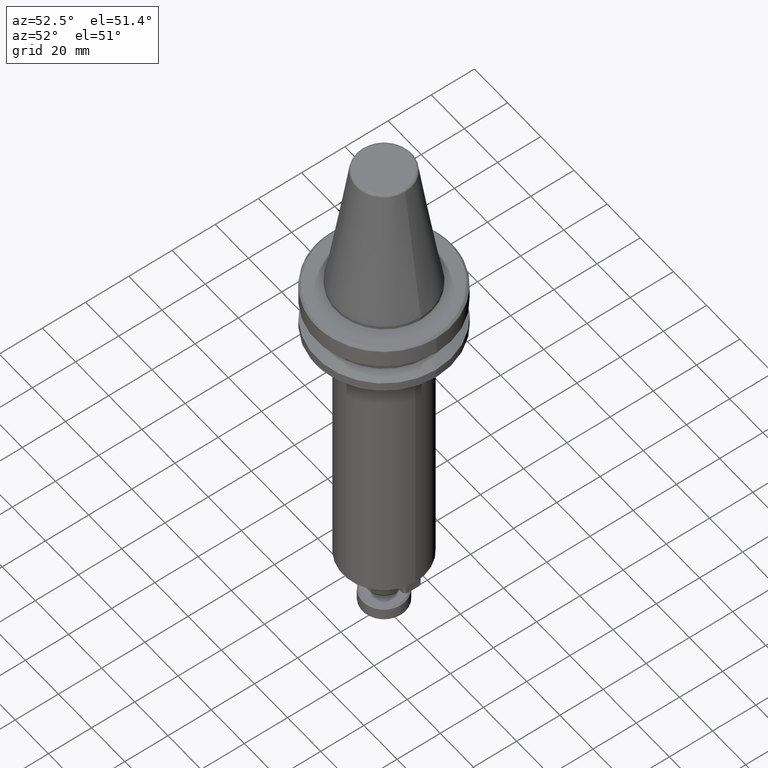
[diagram: clean part render]
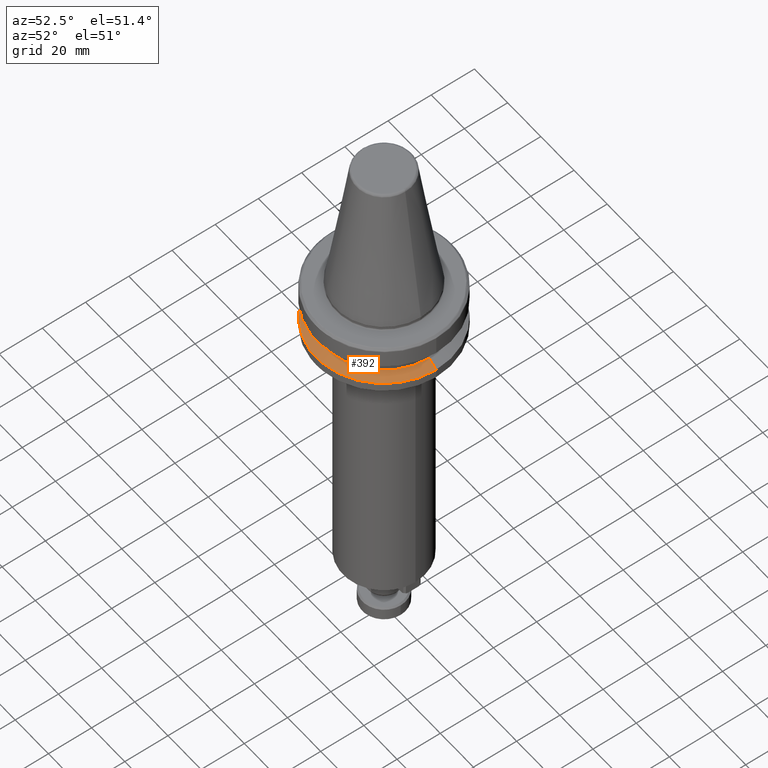
[diagram: same view with one face highlighted and labeled with its STEP entity id]
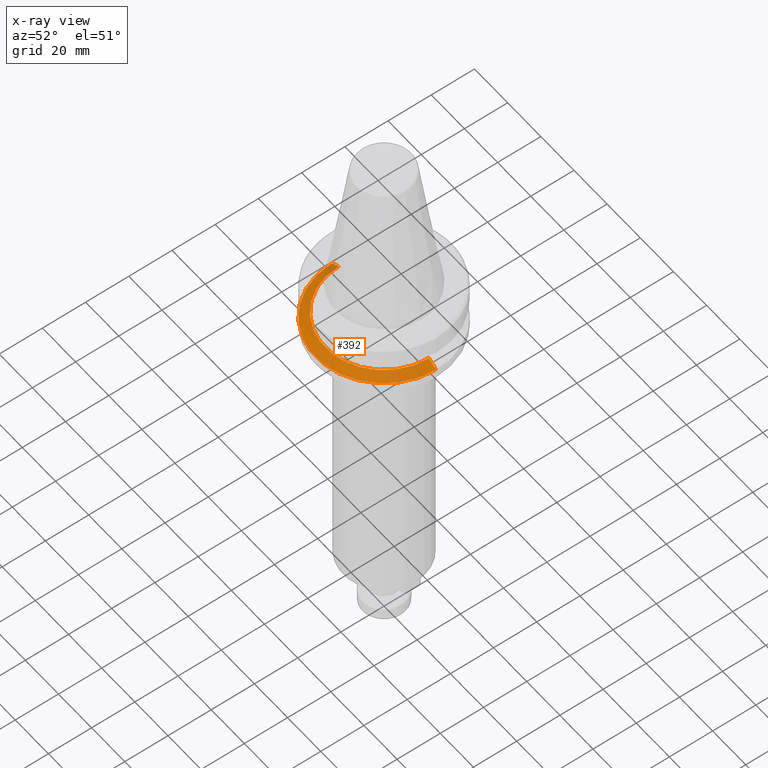
[diagram: x-ray of the same camera — body ghosted, the highlighted face saturated]
A machine part, auxiliary view. The second image highlights one B-rep face of the part: STEP entity #392.
The next image is the same camera in x-ray: the body ghosted, the highlighted face saturated — about 3% of this face is hidden behind the body in this view.
In plain terms, the highlighted conical surface has half-angle 60 deg.
Its self-contained STEP definition (entity closure, byte-faithful):
#56 = LINE ( 'NONE', #1888, #771 ) ;
#332 = EDGE_CURVE ( 'NONE', #2017, #1306, #56, .T. ) ;
#392 = ADVANCED_FACE ( 'NONE', ( #669 ), #2775, .T. ) ;
#438 = DIRECTION ( 'NONE',  ( -1.000000000000000000, 0.0000000000000000000, 0.0000000000000000000 ) ) ;
#449 = DIRECTION ( 'NONE',  ( 0.0000000000000000000, 0.0000000000000000000, -1.000000000000000000 ) ) ;
#457 = CARTESIAN_POINT ( 'NONE',  ( 0.0000000000000000000, 0.0000000000000000000, -19.09999999999999800 ) ) ;
#660 = DIRECTION ( 'NONE',  ( -1.000000000000000000, 0.0000000000000000000, 0.0000000000000000000 ) ) ;
#669 = FACE_OUTER_BOUND ( 'NONE', #2170, .T. ) ;
#677 = DIRECTION ( 'NONE',  ( 0.0000000000000000000, 0.0000000000000000000, -1.000000000000000000 ) ) ;
#744 = CIRCLE ( 'NONE', #2923, 31.50000000000000000 ) ;
#771 = VECTOR ( 'NONE', #1795, 1000.000000000000000 ) ;
#781 = VECTOR ( 'NONE', #1019, 1000.000000000000000 ) ;
#783 = EDGE_CURVE ( 'NONE', #2654, #2017, #1820, .T. ) ;
#799 = CARTESIAN_POINT ( 'NONE',  ( 0.0000000000000000000, 0.0000000000000000000, -21.60014200631674100 ) ) ;
#826 = CARTESIAN_POINT ( 'NONE',  ( 27.16962701892216400, 3.592478546794604700E-015, -19.09999999999999800 ) ) ;
#1019 = DIRECTION ( 'NONE',  ( 0.8660254037844412600, 1.060575238724910200E-016, -0.4999999999999955000 ) ) ;
#1040 = CARTESIAN_POINT ( 'NONE',  ( 31.50000000000000000, 3.857637417314162700E-015, -21.60014200631674100 ) ) ;
#1067 = CARTESIAN_POINT ( 'NONE',  ( -27.16962701892216400, 0.0000000000000000000, -19.09999999999999800 ) ) ;
#1306 = VERTEX_POINT ( 'NONE', #2634 ) ;
#1319 = CARTESIAN_POINT ( 'NONE',  ( 31.50000000000000000, 3.857637417314162700E-015, -21.60014200631674100 ) ) ;
#1437 = ORIENTED_EDGE ( 'NONE', *, *, #783, .T. ) ;
#1560 = LINE ( 'NONE', #1040, #781 ) ;
#1795 = DIRECTION ( 'NONE',  ( -0.8660254037844412600, 0.0000000000000000000, -0.4999999999999955000 ) ) ;
#1820 = CIRCLE ( 'NONE', #2302, 27.16962701892216400 ) ;
#1873 = VERTEX_POINT ( 'NONE', #1319 ) ;
#1888 = CARTESIAN_POINT ( 'NONE',  ( -31.50000000000000000, 0.0000000000000000000, -21.60014200631674100 ) ) ;
#2017 = VERTEX_POINT ( 'NONE', #1067 ) ;
#2062 = EDGE_CURVE ( 'NONE', #2654, #1873, #1560, .T. ) ;
#2170 = EDGE_LOOP ( 'NONE', ( #2600, #1437, #2245, #3568 ) ) ;
#2216 = DIRECTION ( 'NONE',  ( 1.000000000000000000, 0.0000000000000000000, 0.0000000000000000000 ) ) ;
#2245 = ORIENTED_EDGE ( 'NONE', *, *, #332, .T. ) ;
#2302 = AXIS2_PLACEMENT_3D ( 'NONE', #457, #449, #438 ) ;
#2427 = CARTESIAN_POINT ( 'NONE',  ( 0.0000000000000000000, 0.0000000000000000000, -21.60014200631674100 ) ) ;
#2600 = ORIENTED_EDGE ( 'NONE', *, *, #2062, .F. ) ;
#2634 = CARTESIAN_POINT ( 'NONE',  ( -31.50000000000000000, 0.0000000000000000000, -21.60014200631674100 ) ) ;
#2654 = VERTEX_POINT ( 'NONE', #826 ) ;
#2688 = EDGE_CURVE ( 'NONE', #1873, #1306, #744, .T. ) ;
#2775 = CONICAL_SURFACE ( 'NONE', #3416, 31.50000000000000000, 1.047197551196603000 ) ;
#2923 = AXIS2_PLACEMENT_3D ( 'NONE', #799, #3063, #2216 ) ;
#3063 = DIRECTION ( 'NONE',  ( -0.0000000000000000000, -0.0000000000000000000, -1.000000000000000000 ) ) ;
#3416 = AXIS2_PLACEMENT_3D ( 'NONE', #2427, #677, #660 ) ;
#3568 = ORIENTED_EDGE ( 'NONE', *, *, #2688, .F. ) ;